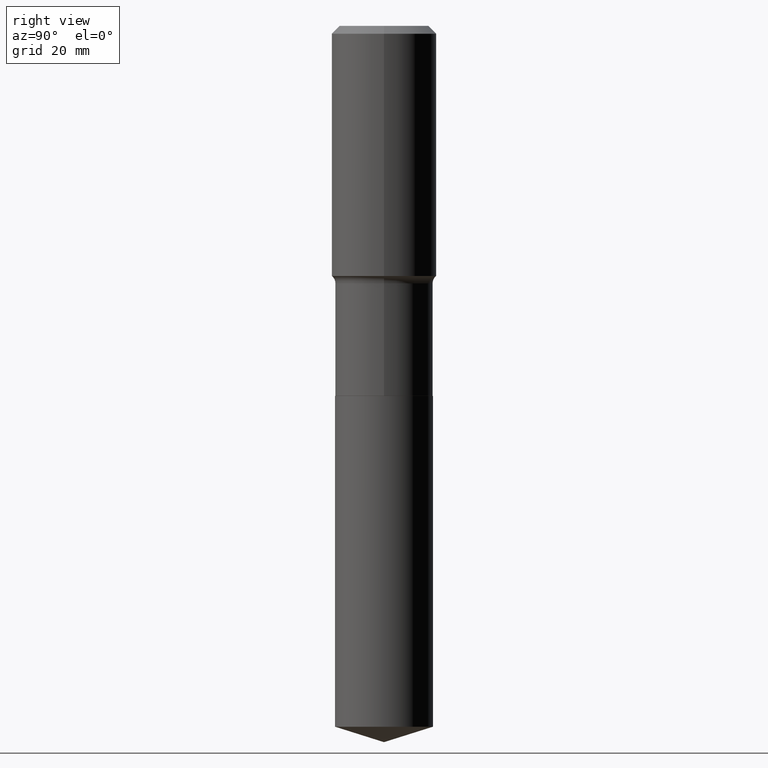
[diagram: clean part render]
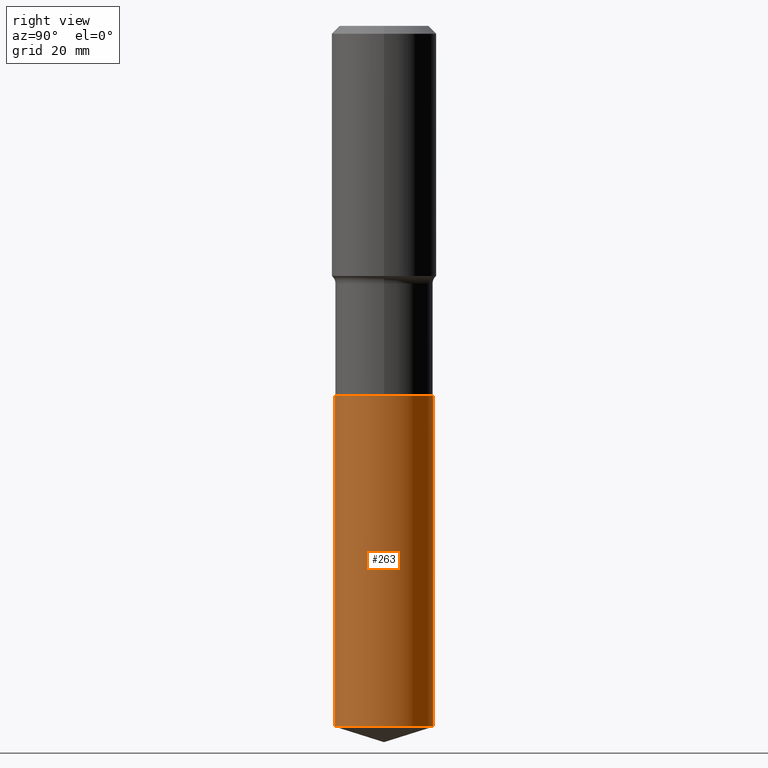
[diagram: same view with one face highlighted and labeled with its STEP entity id]
A machine part, right view. The second image highlights one B-rep face of the part: STEP entity #263.
In plain terms, the highlighted cylindrical surface (partial cylindrical patch) has radius 10.2502 mm, axis along (-0, 0, 1).
Its self-contained STEP definition (entity closure, byte-faithful):
#6 = CYLINDRICAL_SURFACE ( 'NONE', #259, 0.4035499999999999088 ) ;
#16 = VECTOR ( 'NONE', #362, 39.37007874015748143 ) ;
#35 = DIRECTION ( 'NONE',  ( -6.982962677686266711E-15, -1.000000000000000000, 4.061724188325010945E-15 ) ) ;
#44 = AXIS2_PLACEMENT_3D ( 'NONE', #287, #398, #257 ) ;
#65 = VECTOR ( 'NONE', #320, 39.37007874015748143 ) ;
#67 = VERTEX_POINT ( 'NONE', #365 ) ;
#68 = CARTESIAN_POINT ( 'NONE',  ( 7.461614421432089568E-29, -1.065320786107820621E-14, -3.051200000000000134 ) ) ;
#72 = DIRECTION ( 'NONE',  ( -6.982962677686266711E-15, -1.000000000000000000, 4.061724188325010945E-15 ) ) ;
#117 = EDGE_CURVE ( 'NONE', #67, #120, #427, .T. ) ;
#120 = VERTEX_POINT ( 'NONE', #468 ) ;
#159 = ORIENTED_EDGE ( 'NONE', *, *, #117, .T. ) ;
#162 = ORIENTED_EDGE ( 'NONE', *, *, #339, .F. ) ;
#183 = CIRCLE ( 'NONE', #44, 0.4035499999999999088 ) ;
#200 = DIRECTION ( 'NONE',  ( -2.437616151312390416E-29, 3.502726787566277144E-15, 1.000000000000000000 ) ) ;
#214 = EDGE_LOOP ( 'NONE', ( #282, #159, #308, #162 ) ) ;
#219 = EDGE_CURVE ( 'NONE', #241, #120, #324, .T. ) ;
#241 = VERTEX_POINT ( 'NONE', #378 ) ;
#250 = CARTESIAN_POINT ( 'NONE',  ( -2.817974588580150434E-15, -0.4035500000000201148, -5.778261173747885060 ) ) ;
#257 = DIRECTION ( 'NONE',  ( -6.982962677686266711E-15, -1.000000000000000000, 2.707816125550007428E-15 ) ) ;
#259 = AXIS2_PLACEMENT_3D ( 'NONE', #307, #419, #35 ) ;
#263 = ADVANCED_FACE ( 'NONE', ( #281 ), #6, .T. ) ;
#281 = FACE_OUTER_BOUND ( 'NONE', #214, .T. ) ;
#282 = ORIENTED_EDGE ( 'NONE', *, *, #429, .T. ) ;
#287 = CARTESIAN_POINT ( 'NONE',  ( 1.410914278417686230E-28, -2.020535808569685938E-14, -5.778261173747885948 ) ) ;
#307 = CARTESIAN_POINT ( 'NONE',  ( 7.461614421432089568E-29, -1.065320786107820621E-14, -3.051200000000000134 ) ) ;
#308 = ORIENTED_EDGE ( 'NONE', *, *, #219, .F. ) ;
#319 = CARTESIAN_POINT ( 'NONE',  ( 2.867395210159957805E-15, 0.4035499999999892506, -3.051200000000001467 ) ) ;
#320 = DIRECTION ( 'NONE',  ( -2.437616151312390416E-29, 3.502726787566277144E-15, 1.000000000000000000 ) ) ;
#324 = CIRCLE ( 'NONE', #462, 0.4035499999999999088 ) ;
#339 = EDGE_CURVE ( 'NONE', #377, #241, #467, .T. ) ;
#362 = DIRECTION ( 'NONE',  ( -2.437616151312390416E-29, 3.502726787566277144E-15, 1.000000000000000000 ) ) ;
#365 = CARTESIAN_POINT ( 'NONE',  ( 2.867395210160024464E-15, 0.4035499999999797027, -5.778261173747886836 ) ) ;
#377 = VERTEX_POINT ( 'NONE', #250 ) ;
#378 = CARTESIAN_POINT ( 'NONE',  ( -2.817974588580217488E-15, -0.4035500000000105669, -3.051199999999998358 ) ) ;
#398 = DIRECTION ( 'NONE',  ( -2.437616151312390416E-29, 3.502726787566277144E-15, 1.000000000000000000 ) ) ;
#419 = DIRECTION ( 'NONE',  ( -2.437616151312390416E-29, 3.502726787566277144E-15, 1.000000000000000000 ) ) ;
#427 = LINE ( 'NONE', #319, #16 ) ;
#429 = EDGE_CURVE ( 'NONE', #377, #67, #183, .T. ) ;
#462 = AXIS2_PLACEMENT_3D ( 'NONE', #68, #200, #72 ) ;
#467 = LINE ( 'NONE', #481, #65 ) ;
#468 = CARTESIAN_POINT ( 'NONE',  ( 2.867395210160024858E-15, 0.4035499999999892506, -3.051200000000001467 ) ) ;
#481 = CARTESIAN_POINT ( 'NONE',  ( -2.817974588580217488E-15, -0.4035500000000105669, -3.051199999999998358 ) ) ;